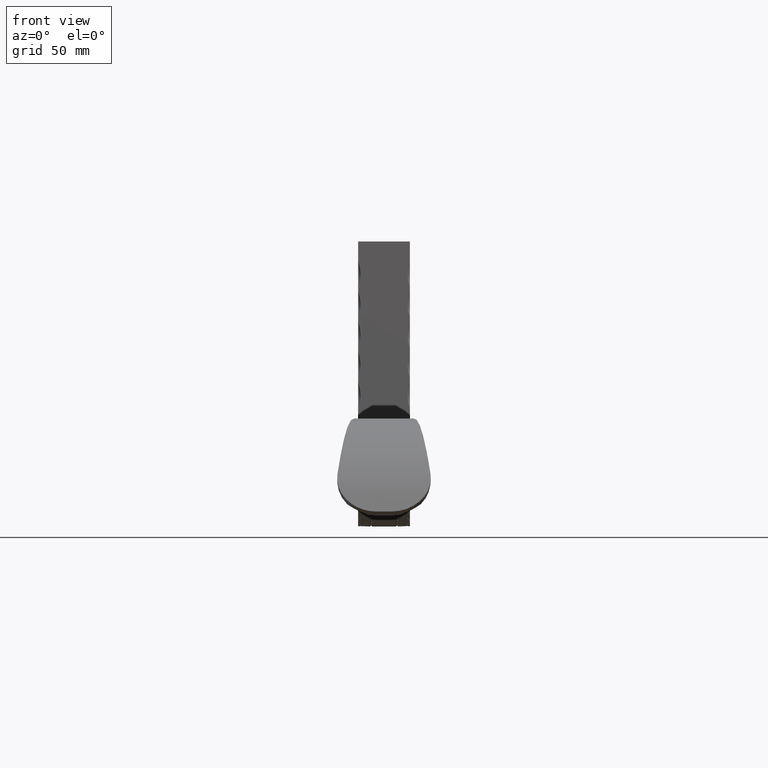
[diagram: clean part render]
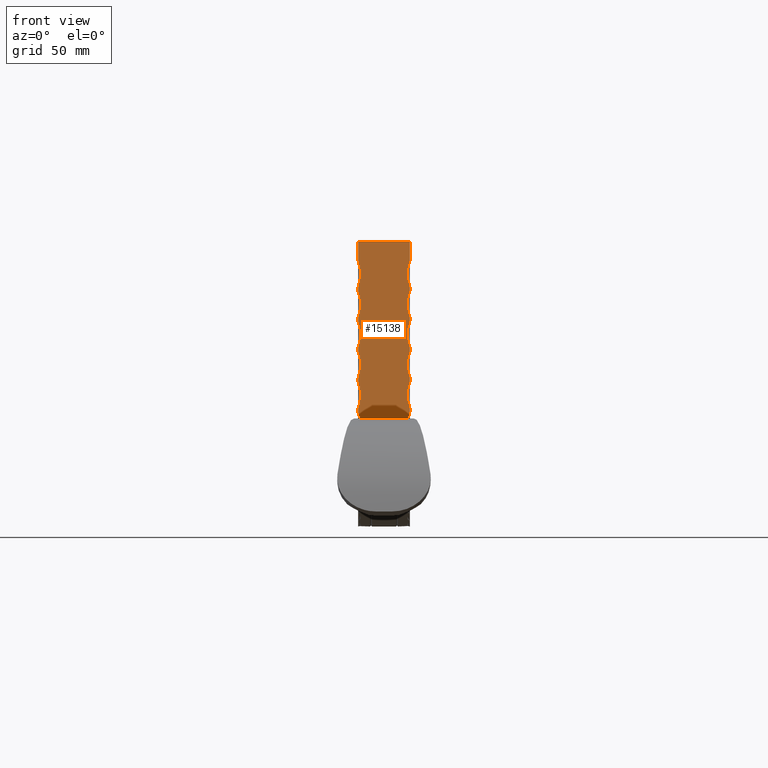
[diagram: same view with one face highlighted and labeled with its STEP entity id]
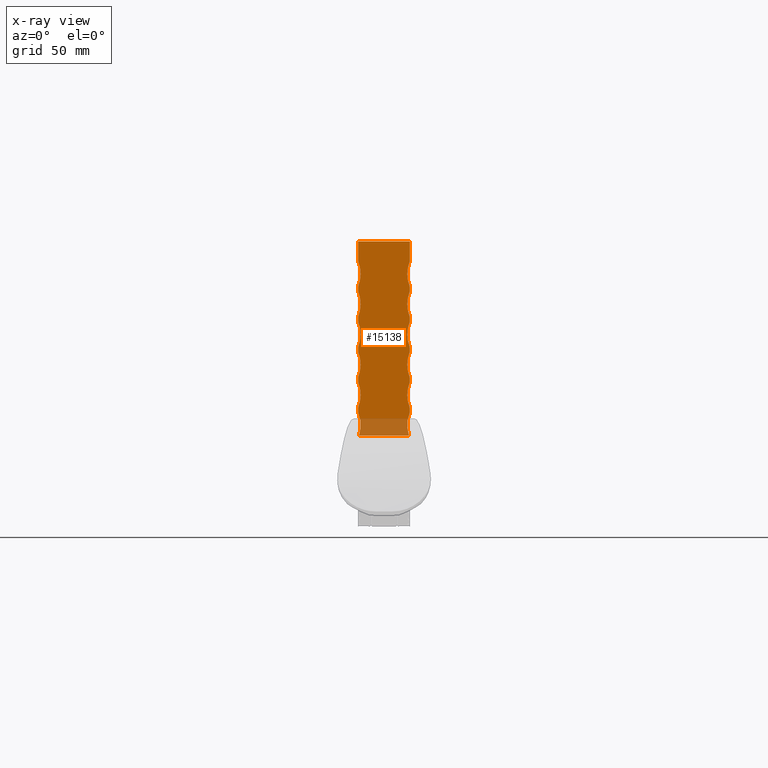
[diagram: x-ray of the same camera — body ghosted, the highlighted face saturated]
A machine part, front view. The second image highlights one B-rep face of the part: STEP entity #15138.
The next image is the same camera in x-ray: the body ghosted, the highlighted face saturated — about 8% of this face is hidden behind the body in this view.
In plain terms, the highlighted planar face has unit normal (0, 1, 0).
Its self-contained STEP definition (entity closure, byte-faithful):
#64 = CARTESIAN_POINT ( 'NONE',  ( 20.00000000000000000, 499.6900000000001700, 61.65778339167188400 ) ) ;
#88 = ORIENTED_EDGE ( 'NONE', *, *, #357, .T. ) ;
#128 = ORIENTED_EDGE ( 'NONE', *, *, #13990, .F. ) ;
#216 = DIRECTION ( 'NONE',  ( 0.0000000000000000000, -7.401486830834377300E-016, 1.000000000000000000 ) ) ;
#242 = CARTESIAN_POINT ( 'NONE',  ( 44.00000000000028400, 499.6900000000002300, 186.6577833916716700 ) ) ;
#357 = EDGE_CURVE ( 'NONE', #4367, #12300, #9573, .T. ) ;
#401 = DIRECTION ( 'NONE',  ( 0.0000000000000000000, 0.0000000000000000000, 1.000000000000000000 ) ) ;
#477 = VECTOR ( 'NONE', #8478, 1000.000000000000000 ) ;
#520 = VERTEX_POINT ( 'NONE', #9267 ) ;
#694 = VERTEX_POINT ( 'NONE', #4766 ) ;
#705 = DIRECTION ( 'NONE',  ( 0.0000000000000000000, -7.401486830834377300E-016, 1.000000000000000000 ) ) ;
#868 = CARTESIAN_POINT ( 'NONE',  ( -20.00000000000000000, 499.6900000000000500, 149.9491171917588600 ) ) ;
#882 = VERTEX_POINT ( 'NONE', #5165 ) ;
#1027 = CARTESIAN_POINT ( 'NONE',  ( -19.33637270488094400, 499.6900000000001700, 61.65778339167187700 ) ) ;
#1227 = VERTEX_POINT ( 'NONE', #2540 ) ;
#1351 = EDGE_CURVE ( 'NONE', #4807, #9995, #2927, .T. ) ;
#1375 = DIRECTION ( 'NONE',  ( 0.0000000000000000000, -7.401486830834377300E-016, 1.000000000000000000 ) ) ;
#1402 = DIRECTION ( 'NONE',  ( 0.0000000000000000000, 1.000000000000000000, 7.401486830834377300E-016 ) ) ;
#1454 = CARTESIAN_POINT ( 'NONE',  ( -20.00000000000000000, 499.6900000000002300, 176.6577833916714200 ) ) ;
#1504 = DIRECTION ( 'NONE',  ( 0.0000000000000000000, 1.000000000000000000, 7.401486830834377300E-016 ) ) ;
#1584 = CIRCLE ( 'NONE', #5978, 26.00000000000035500 ) ;
#1593 = CARTESIAN_POINT ( 'NONE',  ( -20.00000000000000000, 499.6900000000001700, 61.65778339167188400 ) ) ;
#1633 = DIRECTION ( 'NONE',  ( 0.0000000000000000000, -7.401486830834377300E-016, 1.000000000000000000 ) ) ;
#1675 = EDGE_CURVE ( 'NONE', #10851, #13393, #12734, .T. ) ;
#1759 = ORIENTED_EDGE ( 'NONE', *, *, #9441, .T. ) ;
#1779 = CIRCLE ( 'NONE', #4700, 26.00000000000035500 ) ;
#1846 = CARTESIAN_POINT ( 'NONE',  ( -20.00000000000000000, 499.6900000000000500, 126.5947840918023100 ) ) ;
#1988 = DIRECTION ( 'NONE',  ( 0.0000000000000000000, 1.000000000000000000, 7.401486830834377300E-016 ) ) ;
#1997 = CARTESIAN_POINT ( 'NONE',  ( -44.00000000000028400, 499.6900000000001100, 163.3034502917151400 ) ) ;
#2140 = VERTEX_POINT ( 'NONE', #6568 ) ;
#2145 = LINE ( 'NONE', #1593, #11187 ) ;
#2342 = EDGE_CURVE ( 'NONE', #5219, #13658, #7336, .T. ) ;
#2375 = VERTEX_POINT ( 'NONE', #2894 ) ;
#2433 = CARTESIAN_POINT ( 'NONE',  ( -20.00000000000000000, 499.6900000000000500, 173.3034502917153900 ) ) ;
#2540 = CARTESIAN_POINT ( 'NONE',  ( 20.00000000000000000, 499.6900000000001100, 79.88611789188922800 ) ) ;
#2586 = CARTESIAN_POINT ( 'NONE',  ( -44.00000000000028400, 499.6900000000001100, 139.9491171917586000 ) ) ;
#2661 = DIRECTION ( 'NONE',  ( 0.0000000000000000000, 0.0000000000000000000, 1.000000000000000000 ) ) ;
#2703 = EDGE_CURVE ( 'NONE', #520, #14333, #4746, .T. ) ;
#2810 = EDGE_CURVE ( 'NONE', #13393, #8141, #10106, .T. ) ;
#2829 = ORIENTED_EDGE ( 'NONE', *, *, #7473, .T. ) ;
#2852 = CARTESIAN_POINT ( 'NONE',  ( 44.00000000000028400, 499.6900000000001100, 116.5947840918020500 ) ) ;
#2894 = CARTESIAN_POINT ( 'NONE',  ( 20.00000000000000000, 499.6900000000001100, 106.5947840918017100 ) ) ;
#2927 = LINE ( 'NONE', #6175, #13859 ) ;
#2993 = EDGE_CURVE ( 'NONE', #12343, #8138, #13622, .T. ) ;
#3044 = CIRCLE ( 'NONE', #6590, 26.00000000000036900 ) ;
#3156 = VERTEX_POINT ( 'NONE', #3427 ) ;
#3406 = CIRCLE ( 'NONE', #4956, 26.00000000000035500 ) ;
#3427 = CARTESIAN_POINT ( 'NONE',  ( 20.00000000000000000, 499.6900000000000500, 176.6577833916709600 ) ) ;
#3443 = EDGE_CURVE ( 'NONE', #14540, #14333, #6575, .T. ) ;
#3502 = DIRECTION ( 'NONE',  ( 0.0000000000000000000, 0.0000000000000000000, 1.000000000000000000 ) ) ;
#3517 = EDGE_CURVE ( 'NONE', #520, #1227, #1779, .T. ) ;
#3533 = CIRCLE ( 'NONE', #10823, 26.00000000000035500 ) ;
#3572 = ORIENTED_EDGE ( 'NONE', *, *, #2810, .T. ) ;
#3712 = LINE ( 'NONE', #14861, #5558 ) ;
#3791 = CARTESIAN_POINT ( 'NONE',  ( 20.00000000000000000, 499.6900000000001700, 61.65778339167188400 ) ) ;
#3908 = AXIS2_PLACEMENT_3D ( 'NONE', #12460, #13667, #4251 ) ;
#3948 = VECTOR ( 'NONE', #14768, 1000.000000000000000 ) ;
#3950 = CARTESIAN_POINT ( 'NONE',  ( -20.00000000000000000, 499.6900000000001100, 129.9491171917583500 ) ) ;
#3971 = CARTESIAN_POINT ( 'NONE',  ( -20.00000000000000000, 499.6900000000001100, 153.3034502917148800 ) ) ;
#4105 = ORIENTED_EDGE ( 'NONE', *, *, #2993, .F. ) ;
#4251 = DIRECTION ( 'NONE',  ( 0.0000000000000000000, 0.0000000000000000000, 1.000000000000000000 ) ) ;
#4291 = CARTESIAN_POINT ( 'NONE',  ( 20.00000000000000000, 499.6900000000001700, 61.65778339167188400 ) ) ;
#4367 = VERTEX_POINT ( 'NONE', #14539 ) ;
#4562 = VECTOR ( 'NONE', #5617, 1000.000000000000000 ) ;
#4652 = ORIENTED_EDGE ( 'NONE', *, *, #2342, .T. ) ;
#4675 = CARTESIAN_POINT ( 'NONE',  ( -20.00000000000000000, 499.6900000000001700, 83.24045099184526500 ) ) ;
#4700 = AXIS2_PLACEMENT_3D ( 'NONE', #15063, #7975, #9158 ) ;
#4746 = LINE ( 'NONE', #13963, #4562 ) ;
#4766 = CARTESIAN_POINT ( 'NONE',  ( 20.00000000000000000, 499.6900000000001100, 153.3034502917147400 ) ) ;
#4807 = VERTEX_POINT ( 'NONE', #2433 ) ;
#4816 = VECTOR ( 'NONE', #6852, 1000.000000000000000 ) ;
#4900 = AXIS2_PLACEMENT_3D ( 'NONE', #5274, #13464, #6682 ) ;
#4956 = AXIS2_PLACEMENT_3D ( 'NONE', #242, #1504, #2661 ) ;
#4989 = AXIS2_PLACEMENT_3D ( 'NONE', #7592, #13494, #6387 ) ;
#5023 = CARTESIAN_POINT ( 'NONE',  ( 20.00000000000000000, 499.6900000000001700, 61.65778339167188400 ) ) ;
#5109 = EDGE_CURVE ( 'NONE', #4807, #13488, #5797, .T. ) ;
#5165 = CARTESIAN_POINT ( 'NONE',  ( -20.00000000000000000, 499.6900000000001100, 106.5947840918018100 ) ) ;
#5219 = VERTEX_POINT ( 'NONE', #6849 ) ;
#5274 = CARTESIAN_POINT ( 'NONE',  ( -44.00000000000028400, 499.6900000000001700, 93.24045099184550600 ) ) ;
#5372 = EDGE_CURVE ( 'NONE', #3156, #2140, #3406, .T. ) ;
#5411 = ORIENTED_EDGE ( 'NONE', *, *, #3443, .T. ) ;
#5455 = CARTESIAN_POINT ( 'NONE',  ( -20.00000000000000000, 499.6900000000001700, 196.6577833916719300 ) ) ;
#5558 = VECTOR ( 'NONE', #13679, 1000.000000000000000 ) ;
#5617 = DIRECTION ( 'NONE',  ( -1.000000000000000000, 0.0000000000000000000, 0.0000000000000000000 ) ) ;
#5690 = ORIENTED_EDGE ( 'NONE', *, *, #15052, .F. ) ;
#5720 = ORIENTED_EDGE ( 'NONE', *, *, #14524, .T. ) ;
#5797 = CIRCLE ( 'NONE', #8449, 26.00000000000035500 ) ;
#5924 = VECTOR ( 'NONE', #9880, 1000.000000000000000 ) ;
#5966 = EDGE_CURVE ( 'NONE', #1227, #5219, #13767, .T. ) ;
#5978 = AXIS2_PLACEMENT_3D ( 'NONE', #8512, #1402, #9665 ) ;
#5979 = CARTESIAN_POINT ( 'NONE',  ( -20.00000000000000000, 499.6900000000001700, 61.65778339167188400 ) ) ;
#6118 = CARTESIAN_POINT ( 'NONE',  ( -20.00000000000000000, 499.6900000000001700, 61.65778339167188400 ) ) ;
#6127 = DIRECTION ( 'NONE',  ( 0.0000000000000000000, 1.000000000000000000, 7.401486830834377300E-016 ) ) ;
#6175 = CARTESIAN_POINT ( 'NONE',  ( -20.00000000000000000, 499.6900000000001700, 61.65778339167188400 ) ) ;
#6194 = AXIS2_PLACEMENT_3D ( 'NONE', #12738, #1988, #6886 ) ;
#6222 = CARTESIAN_POINT ( 'NONE',  ( -20.00000000000000000, 499.6900000000001100, 79.88611789188922800 ) ) ;
#6282 = EDGE_CURVE ( 'NONE', #8175, #3156, #9654, .T. ) ;
#6387 = DIRECTION ( 'NONE',  ( 0.0000000000000000000, 0.0000000000000000000, 1.000000000000000000 ) ) ;
#6451 = DIRECTION ( 'NONE',  ( 0.0000000000000000000, 1.000000000000000000, 7.401486830834377300E-016 ) ) ;
#6539 = ORIENTED_EDGE ( 'NONE', *, *, #5109, .T. ) ;
#6568 = CARTESIAN_POINT ( 'NONE',  ( 20.00000000000000000, 499.6900000000001700, 196.6577833916719300 ) ) ;
#6575 = CIRCLE ( 'NONE', #3908, 26.00000000000035500 ) ;
#6590 = AXIS2_PLACEMENT_3D ( 'NONE', #9744, #9444, #14627 ) ;
#6621 = EDGE_LOOP ( 'NONE', ( #5690, #5411, #14402, #10251, #13848, #4652, #11303, #10162, #8329, #3572, #15016, #1759, #11994, #10224, #12771, #10447, #4105, #9521, #7230, #6539, #11260, #2829, #128, #5720, #9204, #88 ) ) ;
#6682 = DIRECTION ( 'NONE',  ( 0.0000000000000000000, 0.0000000000000000000, 1.000000000000000000 ) ) ;
#6849 = CARTESIAN_POINT ( 'NONE',  ( 20.00000000000000000, 499.6900000000001700, 83.24045099184506600 ) ) ;
#6852 = DIRECTION ( 'NONE',  ( 0.0000000000000000000, -7.401486830834377300E-016, 1.000000000000000000 ) ) ;
#6857 = LINE ( 'NONE', #5023, #5924 ) ;
#6886 = DIRECTION ( 'NONE',  ( 0.0000000000000000000, -7.401486830834377300E-016, 1.000000000000000000 ) ) ;
#6960 = AXIS2_PLACEMENT_3D ( 'NONE', #2852, #6451, #8853 ) ;
#7007 = CARTESIAN_POINT ( 'NONE',  ( 20.00000000000000000, 499.6900000000000500, 149.9491171917588600 ) ) ;
#7149 = VECTOR ( 'NONE', #14062, 1000.000000000000000 ) ;
#7155 = CARTESIAN_POINT ( 'NONE',  ( -20.00000000000000000, 499.6900000000000500, 211.6577833916718700 ) ) ;
#7161 = EDGE_CURVE ( 'NONE', #2375, #10851, #9838, .T. ) ;
#7230 = ORIENTED_EDGE ( 'NONE', *, *, #1351, .F. ) ;
#7336 = CIRCLE ( 'NONE', #4989, 26.00000000000035500 ) ;
#7427 = EDGE_CURVE ( 'NONE', #4367, #882, #8567, .T. ) ;
#7473 = EDGE_CURVE ( 'NONE', #11929, #11045, #10023, .T. ) ;
#7488 = DIRECTION ( 'NONE',  ( 0.0000000000000000000, -7.401486830834377300E-016, 1.000000000000000000 ) ) ;
#7565 = CARTESIAN_POINT ( 'NONE',  ( 44.00000000000028400, 499.6900000000001100, 163.3034502917151400 ) ) ;
#7592 = CARTESIAN_POINT ( 'NONE',  ( 44.00000000000028400, 499.6900000000001700, 93.24045099184550600 ) ) ;
#7852 = CARTESIAN_POINT ( 'NONE',  ( 20.00000000000000000, 499.6900000000000500, 126.5947840918023100 ) ) ;
#7975 = DIRECTION ( 'NONE',  ( 0.0000000000000000000, 1.000000000000000000, 7.401486830834377300E-016 ) ) ;
#8138 = VERTEX_POINT ( 'NONE', #8147 ) ;
#8141 = VERTEX_POINT ( 'NONE', #7007 ) ;
#8147 = CARTESIAN_POINT ( 'NONE',  ( -20.00000000000000000, 499.6900000000000500, 211.6577833916718700 ) ) ;
#8175 = VERTEX_POINT ( 'NONE', #12096 ) ;
#8245 = CARTESIAN_POINT ( 'NONE',  ( 20.00000000000000000, 499.6900000000001700, 61.65778339167188400 ) ) ;
#8265 = CARTESIAN_POINT ( 'NONE',  ( 20.00000000000000000, 499.6900000000001700, 61.65778339167188400 ) ) ;
#8329 = ORIENTED_EDGE ( 'NONE', *, *, #1675, .T. ) ;
#8449 = AXIS2_PLACEMENT_3D ( 'NONE', #1997, #12586, #12696 ) ;
#8478 = DIRECTION ( 'NONE',  ( 0.0000000000000000000, -7.401486830834377300E-016, 1.000000000000000000 ) ) ;
#8512 = CARTESIAN_POINT ( 'NONE',  ( -44.00000000000028400, 499.6900000000002300, 186.6577833916716700 ) ) ;
#8567 = LINE ( 'NONE', #5979, #14664 ) ;
#8579 = VECTOR ( 'NONE', #9613, 1000.000000000000000 ) ;
#8628 = VERTEX_POINT ( 'NONE', #14596 ) ;
#8853 = DIRECTION ( 'NONE',  ( 0.0000000000000000000, 0.0000000000000000000, 1.000000000000000000 ) ) ;
#8959 = LINE ( 'NONE', #12363, #3948 ) ;
#9127 = VECTOR ( 'NONE', #705, 1000.000000000000000 ) ;
#9158 = DIRECTION ( 'NONE',  ( 0.0000000000000000000, 0.0000000000000000000, 1.000000000000000000 ) ) ;
#9197 = EDGE_CURVE ( 'NONE', #8141, #694, #15194, .T. ) ;
#9204 = ORIENTED_EDGE ( 'NONE', *, *, #7427, .F. ) ;
#9267 = CARTESIAN_POINT ( 'NONE',  ( 19.33637270488160500, 499.6900000000001700, 61.65778339167188400 ) ) ;
#9441 = EDGE_CURVE ( 'NONE', #694, #8175, #3533, .T. ) ;
#9443 = EDGE_CURVE ( 'NONE', #2140, #8628, #6857, .T. ) ;
#9444 = DIRECTION ( 'NONE',  ( 0.0000000000000000000, 1.000000000000000000, 7.401486830834377300E-016 ) ) ;
#9521 = ORIENTED_EDGE ( 'NONE', *, *, #10026, .T. ) ;
#9551 = EDGE_CURVE ( 'NONE', #11929, #13488, #3712, .T. ) ;
#9573 = CIRCLE ( 'NONE', #4900, 26.00000000000035500 ) ;
#9613 = DIRECTION ( 'NONE',  ( 0.0000000000000000000, -7.401486830834377300E-016, 1.000000000000000000 ) ) ;
#9654 = LINE ( 'NONE', #4291, #9127 ) ;
#9665 = DIRECTION ( 'NONE',  ( 0.0000000000000000000, 0.0000000000000000000, 1.000000000000000000 ) ) ;
#9743 = AXIS2_PLACEMENT_3D ( 'NONE', #10778, #15356, #3502 ) ;
#9744 = CARTESIAN_POINT ( 'NONE',  ( -44.00000000000028400, 499.6900000000001100, 116.5947840918020500 ) ) ;
#9838 = CIRCLE ( 'NONE', #6960, 26.00000000000036900 ) ;
#9880 = DIRECTION ( 'NONE',  ( 0.0000000000000000000, -7.401486830834377300E-016, 1.000000000000000000 ) ) ;
#9918 = VECTOR ( 'NONE', #10760, 1000.000000000000000 ) ;
#9995 = VERTEX_POINT ( 'NONE', #1454 ) ;
#10023 = CIRCLE ( 'NONE', #11807, 26.00000000000035500 ) ;
#10026 = EDGE_CURVE ( 'NONE', #12343, #9995, #1584, .T. ) ;
#10106 = CIRCLE ( 'NONE', #9743, 26.00000000000035500 ) ;
#10162 = ORIENTED_EDGE ( 'NONE', *, *, #7161, .T. ) ;
#10224 = ORIENTED_EDGE ( 'NONE', *, *, #5372, .T. ) ;
#10251 = ORIENTED_EDGE ( 'NONE', *, *, #3517, .T. ) ;
#10447 = ORIENTED_EDGE ( 'NONE', *, *, #11436, .T. ) ;
#10760 = DIRECTION ( 'NONE',  ( -1.000000000000000000, 0.0000000000000000000, 0.0000000000000000000 ) ) ;
#10778 = CARTESIAN_POINT ( 'NONE',  ( 44.00000000000028400, 499.6900000000001100, 139.9491171917586000 ) ) ;
#10823 = AXIS2_PLACEMENT_3D ( 'NONE', #7565, #14609, #401 ) ;
#10851 = VERTEX_POINT ( 'NONE', #7852 ) ;
#11045 = VERTEX_POINT ( 'NONE', #3950 ) ;
#11187 = VECTOR ( 'NONE', #7488, 1000.000000000000000 ) ;
#11260 = ORIENTED_EDGE ( 'NONE', *, *, #9551, .F. ) ;
#11303 = ORIENTED_EDGE ( 'NONE', *, *, #12490, .T. ) ;
#11436 = EDGE_CURVE ( 'NONE', #8628, #8138, #13629, .T. ) ;
#11807 = AXIS2_PLACEMENT_3D ( 'NONE', #2586, #6127, #11830 ) ;
#11830 = DIRECTION ( 'NONE',  ( 0.0000000000000000000, 0.0000000000000000000, 1.000000000000000000 ) ) ;
#11929 = VERTEX_POINT ( 'NONE', #868 ) ;
#11994 = ORIENTED_EDGE ( 'NONE', *, *, #6282, .T. ) ;
#12096 = CARTESIAN_POINT ( 'NONE',  ( 20.00000000000000000, 499.6900000000000500, 173.3034502917153900 ) ) ;
#12185 = CARTESIAN_POINT ( 'NONE',  ( 20.00000000000000000, 499.6900000000001100, 129.9491171917582600 ) ) ;
#12300 = VERTEX_POINT ( 'NONE', #4675 ) ;
#12343 = VERTEX_POINT ( 'NONE', #5455 ) ;
#12363 = CARTESIAN_POINT ( 'NONE',  ( -20.00000000000000000, 499.6900000000001700, 61.65778339167188400 ) ) ;
#12460 = CARTESIAN_POINT ( 'NONE',  ( -44.00000000000028400, 499.6900000000001700, 69.88611789188895800 ) ) ;
#12490 = EDGE_CURVE ( 'NONE', #13658, #2375, #14929, .T. ) ;
#12586 = DIRECTION ( 'NONE',  ( 0.0000000000000000000, 1.000000000000000000, 7.401486830834377300E-016 ) ) ;
#12696 = DIRECTION ( 'NONE',  ( 0.0000000000000000000, 0.0000000000000000000, 1.000000000000000000 ) ) ;
#12734 = LINE ( 'NONE', #3791, #477 ) ;
#12738 = CARTESIAN_POINT ( 'NONE',  ( -20.00000000000000000, 499.6900000000001700, 61.65778339167188400 ) ) ;
#12771 = ORIENTED_EDGE ( 'NONE', *, *, #9443, .T. ) ;
#13393 = VERTEX_POINT ( 'NONE', #12185 ) ;
#13464 = DIRECTION ( 'NONE',  ( 0.0000000000000000000, 1.000000000000000000, 7.401486830834377300E-016 ) ) ;
#13488 = VERTEX_POINT ( 'NONE', #3971 ) ;
#13494 = DIRECTION ( 'NONE',  ( 0.0000000000000000000, 1.000000000000000000, 7.401486830834377300E-016 ) ) ;
#13622 = LINE ( 'NONE', #6118, #14376 ) ;
#13629 = LINE ( 'NONE', #7155, #9918 ) ;
#13658 = VERTEX_POINT ( 'NONE', #13756 ) ;
#13667 = DIRECTION ( 'NONE',  ( 0.0000000000000000000, 1.000000000000000000, 7.401486830834377300E-016 ) ) ;
#13679 = DIRECTION ( 'NONE',  ( 0.0000000000000000000, -7.401486830834377300E-016, 1.000000000000000000 ) ) ;
#13756 = CARTESIAN_POINT ( 'NONE',  ( 20.00000000000000000, 499.6900000000001100, 103.2404509918457800 ) ) ;
#13767 = LINE ( 'NONE', #8245, #8579 ) ;
#13779 = PLANE ( 'NONE',  #6194 ) ;
#13848 = ORIENTED_EDGE ( 'NONE', *, *, #5966, .T. ) ;
#13859 = VECTOR ( 'NONE', #216, 1000.000000000000000 ) ;
#13963 = CARTESIAN_POINT ( 'NONE',  ( -20.00000000000000000, 499.6900000000001700, 61.65778339167188400 ) ) ;
#13990 = EDGE_CURVE ( 'NONE', #14717, #11045, #2145, .T. ) ;
#14062 = DIRECTION ( 'NONE',  ( 0.0000000000000000000, -7.401486830834377300E-016, 1.000000000000000000 ) ) ;
#14333 = VERTEX_POINT ( 'NONE', #1027 ) ;
#14376 = VECTOR ( 'NONE', #1633, 1000.000000000000000 ) ;
#14402 = ORIENTED_EDGE ( 'NONE', *, *, #2703, .F. ) ;
#14509 = FACE_OUTER_BOUND ( 'NONE', #6621, .T. ) ;
#14524 = EDGE_CURVE ( 'NONE', #14717, #882, #3044, .T. ) ;
#14539 = CARTESIAN_POINT ( 'NONE',  ( -20.00000000000000000, 499.6900000000001100, 103.2404509918457800 ) ) ;
#14540 = VERTEX_POINT ( 'NONE', #6222 ) ;
#14596 = CARTESIAN_POINT ( 'NONE',  ( 20.00000000000000000, 499.6900000000000500, 211.6577833916718700 ) ) ;
#14609 = DIRECTION ( 'NONE',  ( 0.0000000000000000000, 1.000000000000000000, 7.401486830834377300E-016 ) ) ;
#14627 = DIRECTION ( 'NONE',  ( 0.0000000000000000000, 0.0000000000000000000, 1.000000000000000000 ) ) ;
#14664 = VECTOR ( 'NONE', #1375, 1000.000000000000000 ) ;
#14717 = VERTEX_POINT ( 'NONE', #1846 ) ;
#14768 = DIRECTION ( 'NONE',  ( 0.0000000000000000000, -7.401486830834377300E-016, 1.000000000000000000 ) ) ;
#14861 = CARTESIAN_POINT ( 'NONE',  ( -20.00000000000000000, 499.6900000000001700, 61.65778339167188400 ) ) ;
#14929 = LINE ( 'NONE', #64, #7149 ) ;
#15016 = ORIENTED_EDGE ( 'NONE', *, *, #9197, .T. ) ;
#15052 = EDGE_CURVE ( 'NONE', #14540, #12300, #8959, .T. ) ;
#15063 = CARTESIAN_POINT ( 'NONE',  ( 44.00000000000028400, 499.6900000000001700, 69.88611789188895800 ) ) ;
#15138 = ADVANCED_FACE ( 'NONE', ( #14509 ), #13779, .F. ) ;
#15194 = LINE ( 'NONE', #8265, #4816 ) ;
#15356 = DIRECTION ( 'NONE',  ( 0.0000000000000000000, 1.000000000000000000, 7.401486830834377300E-016 ) ) ;